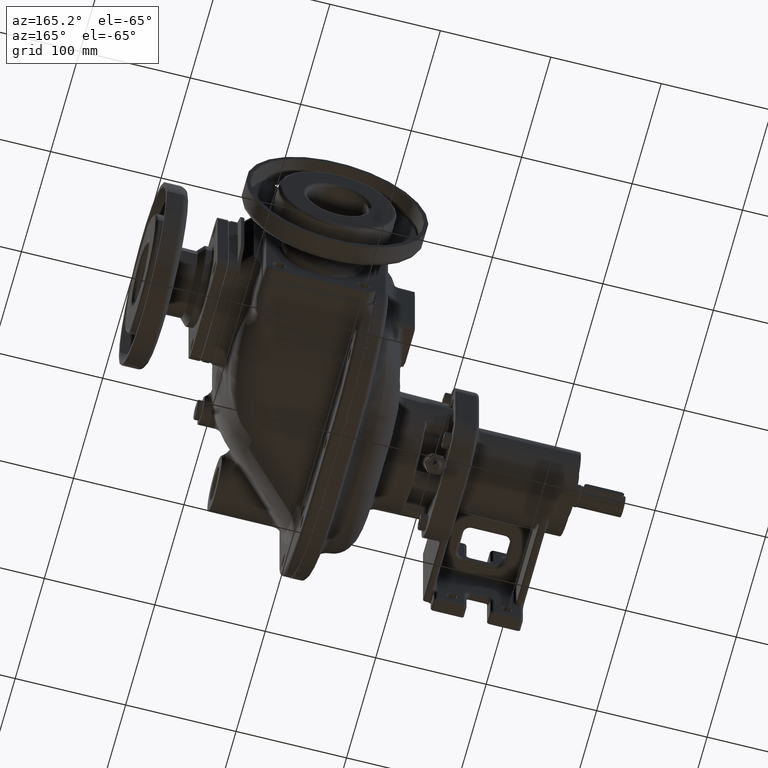
[diagram: clean part render]
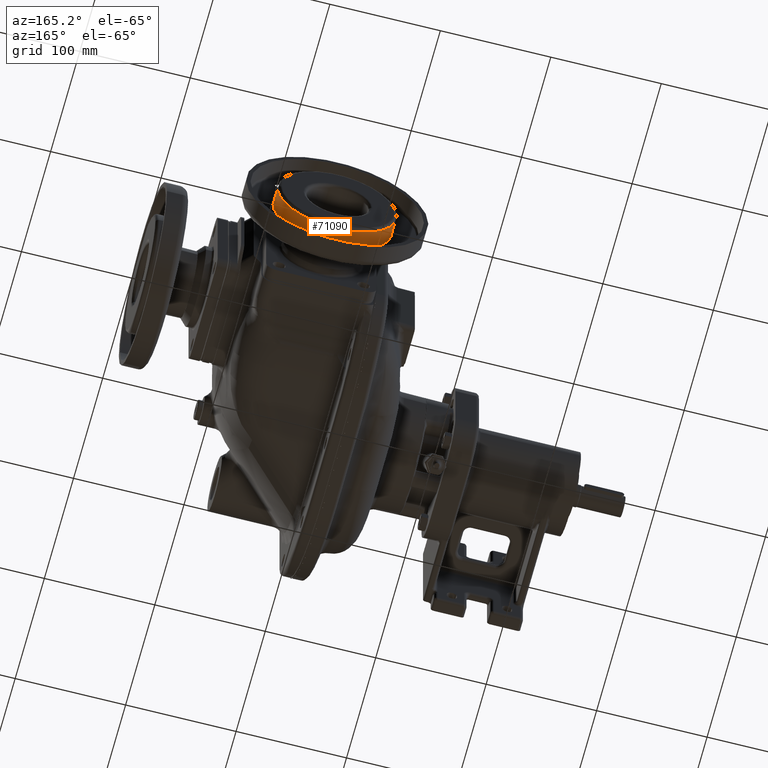
[diagram: same view with one face highlighted and labeled with its STEP entity id]
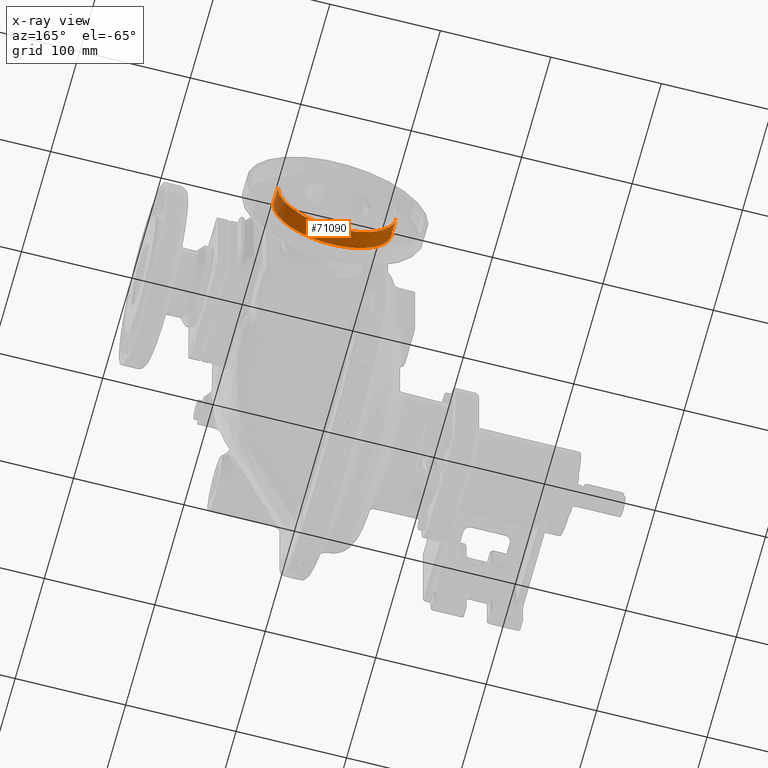
[diagram: x-ray of the same camera — body ghosted, the highlighted face saturated]
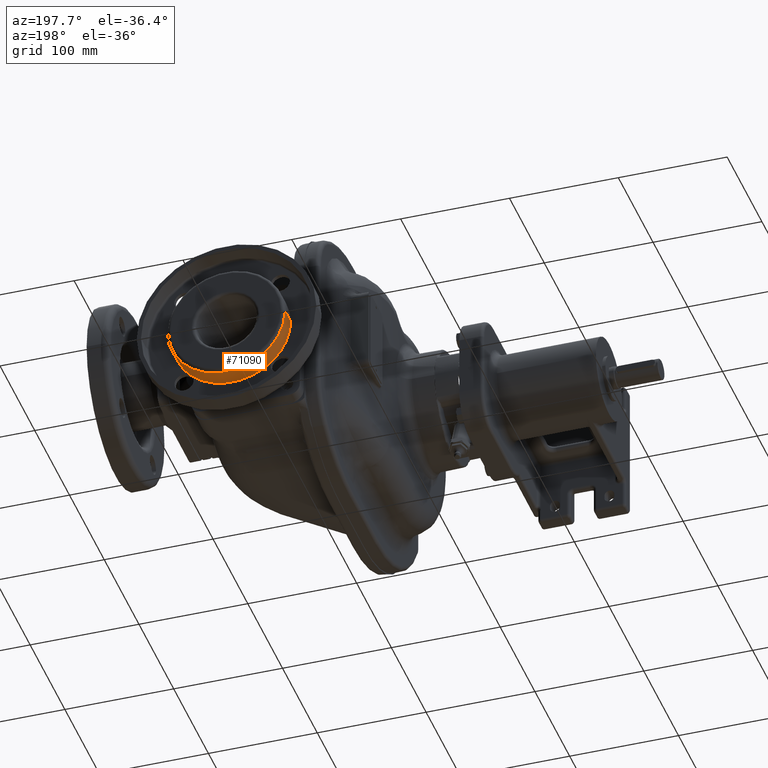
[diagram: same view with one face highlighted and labeled with its STEP entity id]
A machine part, auxiliary view. The second image highlights one B-rep face of the part: STEP entity #71090.
The next image is the same camera in x-ray: the body ghosted, the highlighted face saturated — about 0% of this face is hidden behind the body in this view.
A second angle (auxiliary view) of the same face is appended — the face is thin or edge-on in the first view.
In plain terms, the highlighted cylindrical surface (partial cylindrical patch) has radius 53.75 mm, axis along (0, 1, 0).
Its self-contained STEP definition (entity closure, byte-faithful):
#23896=CARTESIAN_POINT('',(3.3E1,3.55E2,-4.6E1));
#23897=DIRECTION('',(0.E0,1.E0,0.E0));
#23898=DIRECTION('',(7.071067811865E-1,0.E0,-7.071067811865E-1));
#23899=AXIS2_PLACEMENT_3D('',#23896,#23897,#23898);
#23901=CARTESIAN_POINT('',(3.3E1,3.55E2,-4.6E1));
#23902=DIRECTION('',(0.E0,1.E0,0.E0));
#23903=DIRECTION('',(1.E0,0.E0,0.E0));
#23904=AXIS2_PLACEMENT_3D('',#23901,#23902,#23903);
#23906=DIRECTION('',(0.E0,-1.E0,0.E0));
#23907=VECTOR('',#23906,1.6E1);
#23908=CARTESIAN_POINT('',(8.675E1,3.71E2,-4.6E1));
#23909=LINE('',#23908,#23907);
#23910=CARTESIAN_POINT('',(3.3E1,3.71E2,-4.6E1));
#23911=DIRECTION('',(0.E0,-1.E0,0.E0));
#23912=DIRECTION('',(-1.E0,0.E0,0.E0));
#23913=AXIS2_PLACEMENT_3D('',#23910,#23911,#23912);
#23915=DIRECTION('',(0.E0,-1.E0,0.E0));
#23916=VECTOR('',#23915,1.6E1);
#23917=CARTESIAN_POINT('',(-2.075E1,3.71E2,-4.6E1));
#23918=LINE('',#23917,#23916);
#23919=CARTESIAN_POINT('',(3.3E1,3.55E2,-4.6E1));
#23920=DIRECTION('',(0.E0,1.E0,0.E0));
#23921=DIRECTION('',(-7.071067811865E-1,0.E0,-7.071067811865E-1));
#23922=AXIS2_PLACEMENT_3D('',#23919,#23920,#23921);
#40690=CARTESIAN_POINT('',(-2.075E1,3.71E2,-4.6E1));
#40692=VERTEX_POINT('',#40690);
#40702=CARTESIAN_POINT('',(8.675E1,3.71E2,-4.6E1));
#40704=VERTEX_POINT('',#40702);
#40757=CARTESIAN_POINT('',(-2.075E1,3.55E2,-4.6E1));
#40758=VERTEX_POINT('',#40757);
#40759=CARTESIAN_POINT('',(8.675E1,3.55E2,-4.6E1));
#40760=VERTEX_POINT('',#40759);
#40762=CARTESIAN_POINT('',(7.100698948878E1,3.55E2,-8.400698948878E1));
#40764=VERTEX_POINT('',#40762);
#40772=CARTESIAN_POINT('',(-5.006989488777E0,3.55E2,-8.400698948878E1));
#40774=VERTEX_POINT('',#40772);
#71072=CARTESIAN_POINT('',(3.3E1,3.278E2,-4.6E1));
#71073=DIRECTION('',(0.E0,1.E0,0.E0));
#71074=DIRECTION('',(1.E0,0.E0,0.E0));
#71075=AXIS2_PLACEMENT_3D('',#71072,#71073,#71074);
#71076=CYLINDRICAL_SURFACE('',#71075,5.375E1);
#71078=ORIENTED_EDGE('',*,*,#71077,.F.);
#71080=ORIENTED_EDGE('',*,*,#71079,.F.);
#71082=ORIENTED_EDGE('',*,*,#71081,.F.);
#71083=ORIENTED_EDGE('',*,*,#71065,.F.);
#71085=ORIENTED_EDGE('',*,*,#71084,.T.);
#71087=ORIENTED_EDGE('',*,*,#71086,.F.);
#71088=EDGE_LOOP('',(#71078,#71080,#71082,#71083,#71085,#71087));
#71089=FACE_OUTER_BOUND('',#71088,.F.);
#71090=ADVANCED_FACE('',(#71089),#71076,.T.);
#23900=CIRCLE('',#23899,5.375E1);
#23905=CIRCLE('',#23904,5.375E1);
#23914=CIRCLE('',#23913,5.375E1);
#23923=CIRCLE('',#23922,5.375E1);
#71065=EDGE_CURVE('',#40692,#40704,#23914,.T.);
#71077=EDGE_CURVE('',#40764,#40774,#23900,.T.);
#71079=EDGE_CURVE('',#40760,#40764,#23905,.T.);
#71081=EDGE_CURVE('',#40704,#40760,#23909,.T.);
#71084=EDGE_CURVE('',#40692,#40758,#23918,.T.);
#71086=EDGE_CURVE('',#40774,#40758,#23923,.T.);